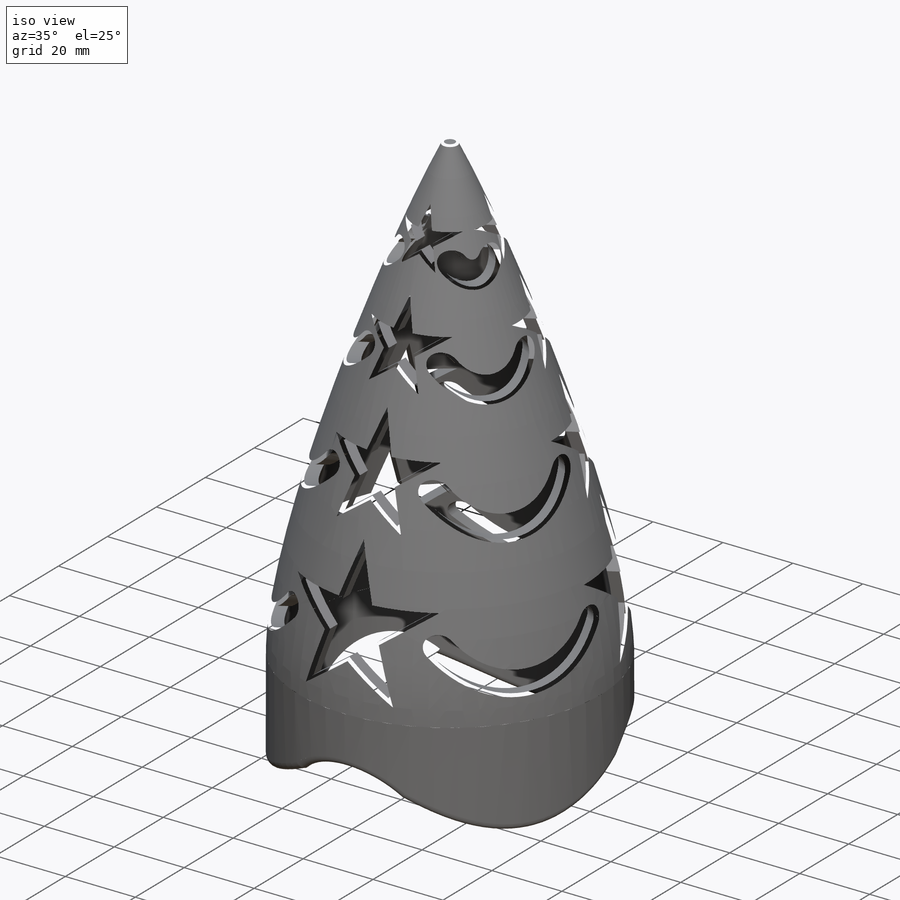
[diagram: iso view]
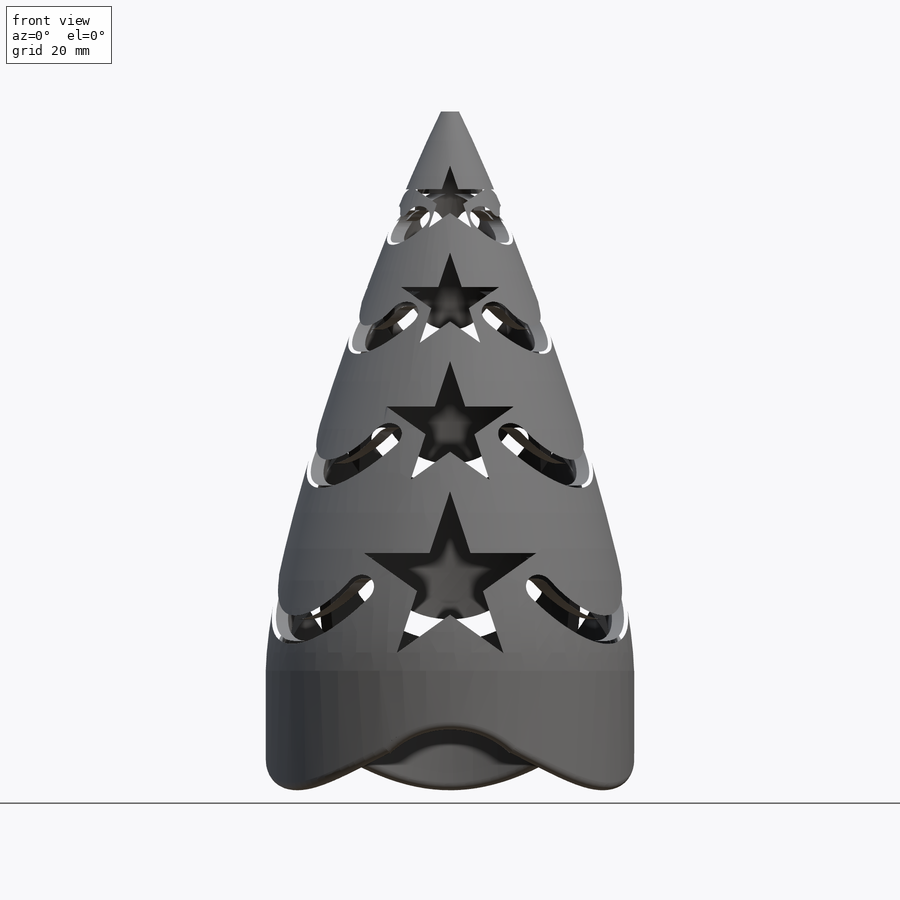
[diagram: front view]
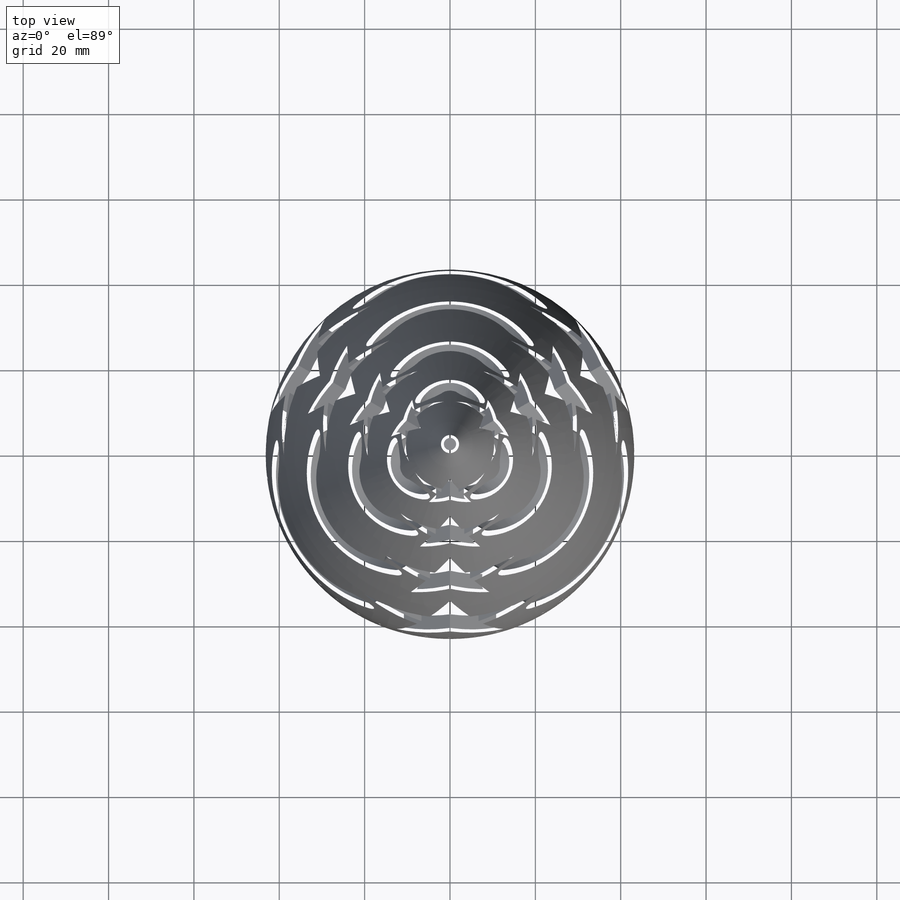
[diagram: top view]
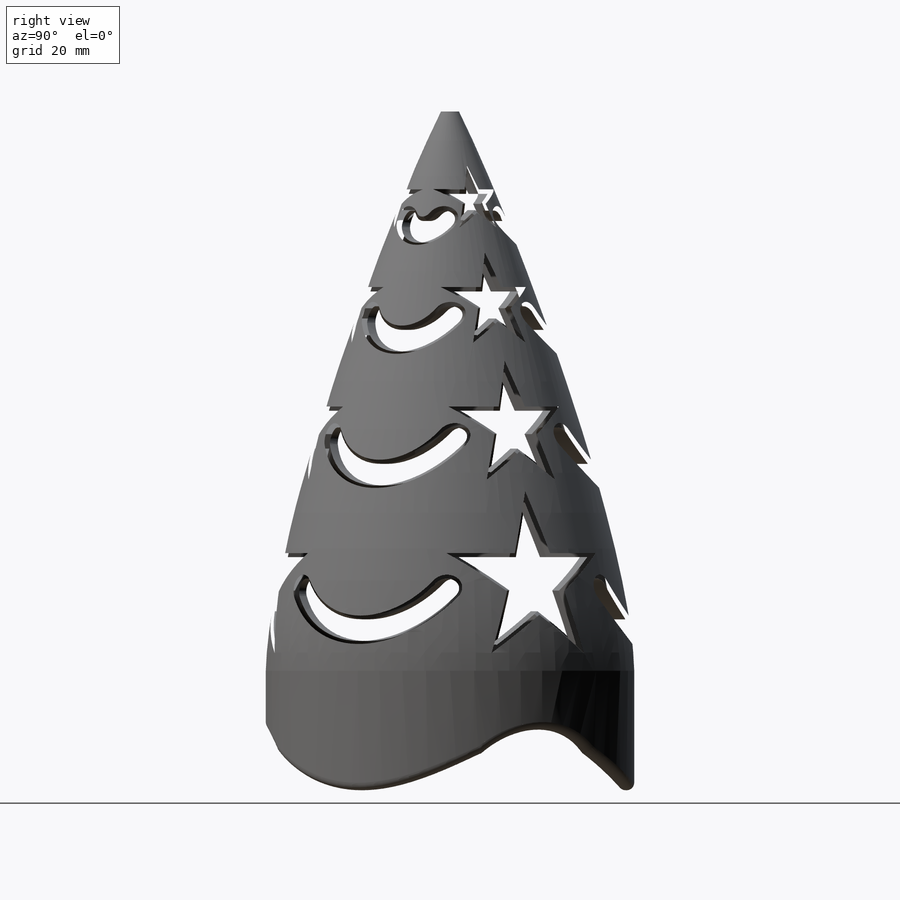
[diagram: right view]
SOLIDWORKS PART (.sldprt)
format: sldprt  version: not decoded by parser v0  size: 2,863,616 bytes
history: native  units: mm
features: sketch x14, plane x7, cut_extrude x7, fillet x4, pattern_circular x4, extrude x3, material x1, revolve x1, shell x1 (+13 scaffold rows collapsed)
feature tree (55):
  scaffold x13  (default folders/planes/origin — collapsed)
  material  "Material <not specified>"
  sketch  "Sketch5"  dims[D1=43.18mm D2=1.905mm]
  revolve  "Revolve1"  Angle=360deg
  shell  "Shell1"  Thickness=3.81mm
  fillet  "Fillet2"  Radius=1.27mm
  plane  "Plane2"  Offset=50.8mm
  sketch  "Sketch6"  dims[c1.D1=15.24mm c1.D2=12.7mm c1.D3=50.8mm c1.D4=8.89mm c1.D5=76.2mm c1.D6=6.35mm c1.D7=3.81mm c1.D8=101.6mm c2.D3=12.7mm c2.D9=20.32mm c2.D5=12.7mm c2.D8=12.7mm]
  cut_extrude  "Cut-Extrude1"  Depth=3.81mm
  pattern_circular  "CirPattern1"  Count=3 Angle=360deg
  sketch  "Sketch8"  dims[c1.D1=~97.244533mm c2.D1=60.0deg]
  plane  "Plane3"
  plane  "Plane4"  Offset=12.7mm
  sketch  "Sketch9"  dims[c1.D4=38.1mm c1.D5=22.606mm c1.D6=12.7mm c1.D2=2.54mm c1.D3=43.18mm c2.D4=2.54mm c2.D5=2.54mm c2.D7=2.54mm c2.D1=38.1mm c2.D2=38.1mm c2.D3=25.4mm c3.D1=38.1mm c3.D3=31.75mm c3.D6=20.32mm c3.D8=8.89mm]
  cut_extrude  "Cut-Extrude2"  Depth=3.81mm
  pattern_circular  "CirPattern2"  Count=3 Angle=360deg
  sketch  "Sketch10"  dims[c1.D1=~15.059498mm c2.D1=125.0deg c2.D2=~15.059498mm c3.D2=125.0deg c3.D3=10.16mm c3.D4=~16.111702mm c4.D4=35.0deg c4.D1=40.64mm c4.D2=15.24mm]
  plane  "Plane5"
  sketch  "Sketch11"
  extrude  "Boss-Extrude1"  Depth=31.75mm
  sketch  "Sketch12"  dims[c1.D4=~78.799755mm c1.D5=88.9mm c1.D6=88.9mm c1.D1=66.04mm c1.D2=22.86mm c1.D3=71.12mm c2.D3=35.0deg c2.D4=35.0deg c2.D7=6.35mm c2.D8=3.81mm]
  cut_extrude  "Cut-Extrude3"  Depth=3.81mm
  pattern_circular  "CirPattern3"  Count=3 Angle=360deg
  sketch  "Sketch14"  dims[D1=40.64mm]
  cut_extrude  "Cut-Extrude7"  Depth=3.81mm
  pattern_circular  "CirPattern4"  Count=3 Angle=360deg
  fillet  "Fillet4"  Radius=1.778mm
  fillet  "Fillet5"  Radius=1.778mm
  extrude  "Boss-Extrude2"  Depth=5.08mm
  sketch  "Sketch16"
  sketch  "Sketch17"  dims[D1=7.62mm D2=~46.615527mm]
  plane  "Plane6"
  plane  "Plane7"
  plane  "Plane8"  Offset=187.48272mm
  sketch  "Sketch19"
  cut_extrude  "Cut-Extrude8"  Depth=66.04mm
  sketch  "Sketch22"  dims[D1=40.64mm D2=15.24mm D3=15.24mm]
  extrude  "Boss-Extrude3"  Depth=5.08mm
  sketch  "Sketch23"
  cut_extrude  "Cut-Extrude9"  Depth=70.104mm
  sketch  "Sketch24"
  cut_extrude  "Cut-Extrude10"  Depth=7.62mm
  fillet  "Fillet6"  Radius=0.762mm
decode coverage: 29 of 34 modeling features carry decoded parameters
note: ~ marks probable driven/reference dimensions
note: suppression state not decoded; provenance and decode notes live in map.json
